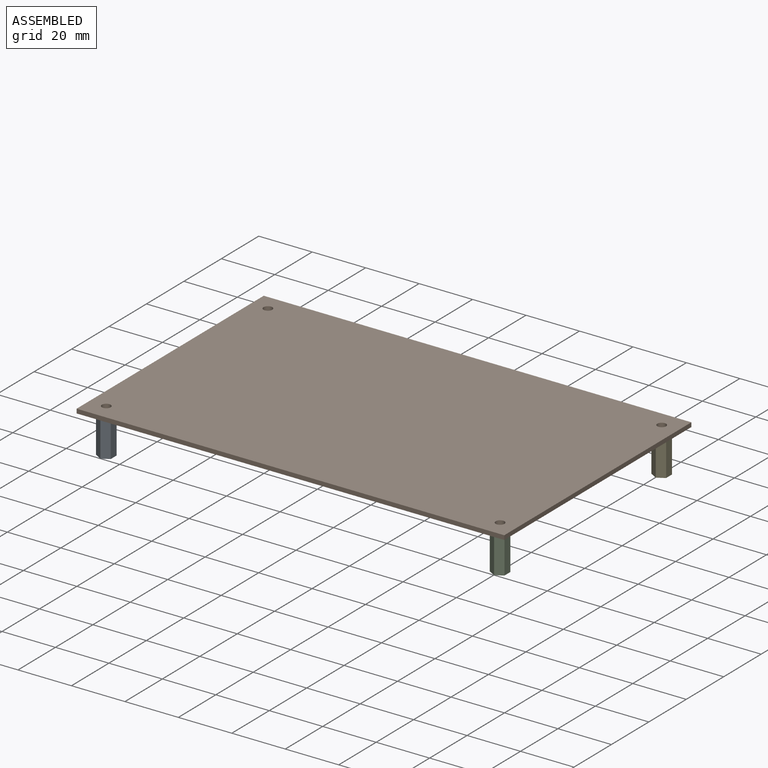
[diagram: assembled view]
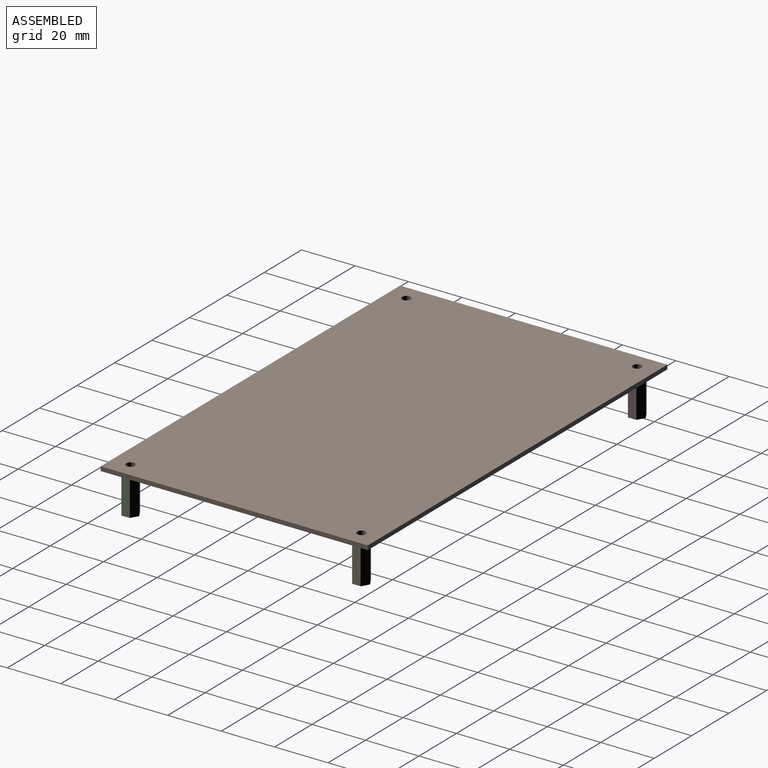
[diagram: assembled view, second angle]
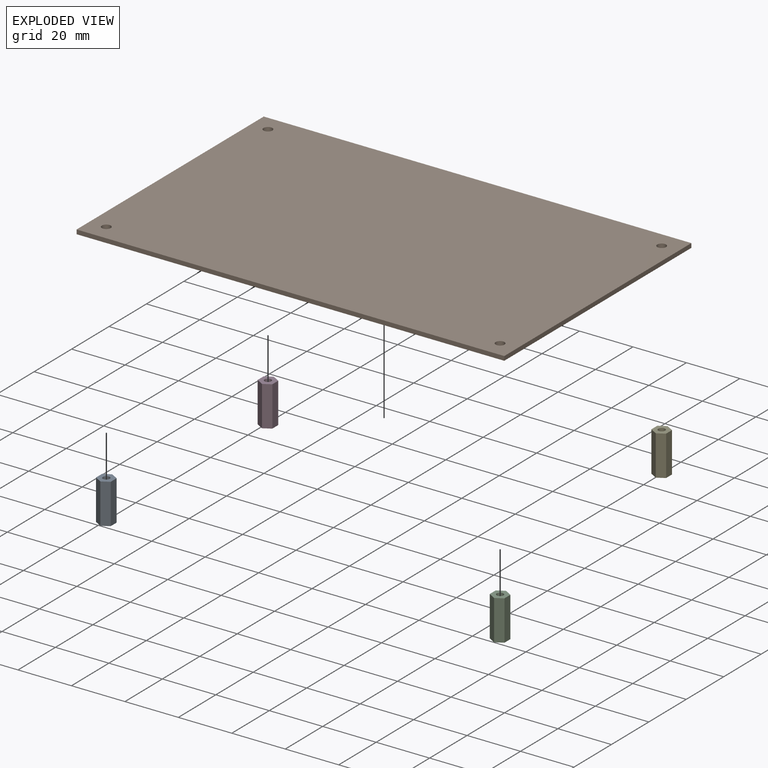
[diagram: exploded view]
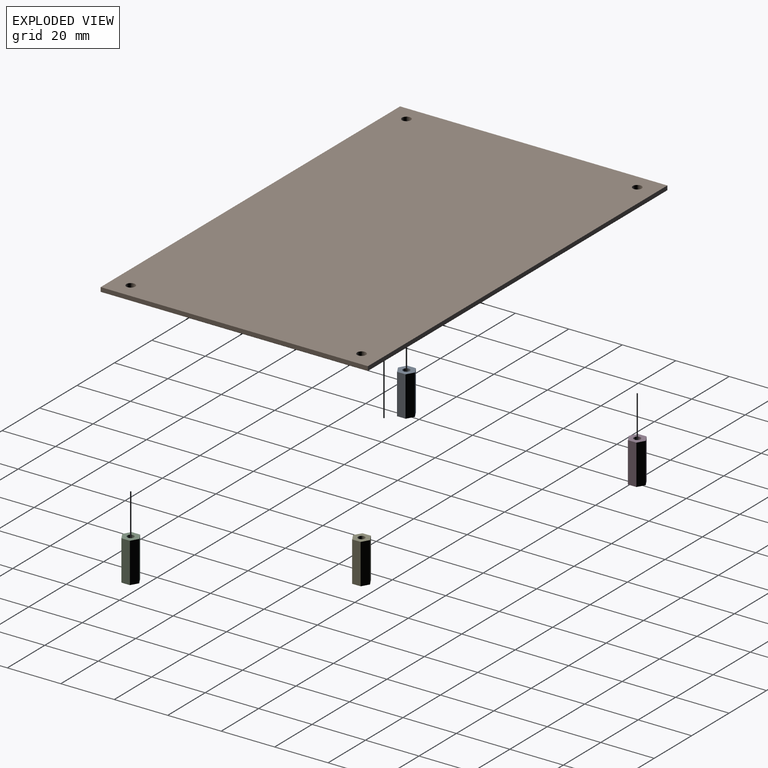
[diagram: exploded view, second angle]
ASSEMBLY  parts=5 mates=4
PART A: 9 faces, bbox 5.5x6.4x15 mm
  f0: plane 15x2.75mm, normal (0.5,0.87,0), area 47.6mm2, adj f1,f5,f6,f7
  f1: plane 15x2.75mm, normal (-0.5,0.87,0), area 47.6mm2, adj f0,f2,f6,f7
  f2: plane 15x3.18mm, normal (-1,0,0), area 47.6mm2, adj f1,f3,f6,f7
  f3: plane 15x2.75mm, normal (-0.5,-0.87,0), area 47.6mm2, adj f2,f4,f6,f7
  f4: plane 15x2.75mm, normal (0.5,-0.87,0), area 47.6mm2, adj f3,f5,f6,f7
  f5: plane 15x3.18mm, normal (1,0,0), area 47.6mm2, adj f0,f4,f6,f7
  f6: plane 6.35x5.5mm, normal (0,0,1), area 21.3mm2, adj f0,f1,f2,f3,f4,f5,f8
  f7: plane 6.35x5.5mm, normal (0,0,-1), area 21.3mm2, adj f0,f1,f2,f3,f4,f5,f8
  f8: cylinder r=1.25mm len=15mm, axis (0,0,1), area 117.8mm2, adj f6,f7
PART B: 10 faces, bbox 160x100x1.6 mm
  f0: plane 160x1.6mm, normal (0,1,0), area 256mm2, adj f1,f3,f4,f5
  f1: plane 100x1.6mm, normal (-1,0,0), area 160mm2, adj f0,f2,f4,f5
  f2: plane 160x1.6mm, normal (0,-1,0), area 256mm2, adj f1,f3,f4,f5
  f3: plane 100x1.6mm, normal (1,0,0), area 160mm2, adj f0,f2,f4,f5
  f4: plane 160x100mm, normal (0,0,1), area 15965.8mm2, adj f0,f1,f2,f3,f6,f7,f8,f9
  f5: plane 160x100mm, normal (0,0,-1), area 15965.8mm2, adj f0,f1,f2,f3,f6,f7,f8,f9
  f6: cylinder r=1.65mm len=3.3mm, axis (0,0,1), area 16.6mm2, adj f4,f5
  f7: cylinder r=1.65mm len=3.3mm, axis (0,0,1), area 16.6mm2, adj f4,f5
  f8: cylinder r=1.65mm len=3.3mm, axis (0,0,1), area 16.6mm2, adj f4,f5
  f9: cylinder r=1.65mm len=3.3mm, axis (0,0,1), area 16.6mm2, adj f4,f5
PART C: same geometry as A
PART D: same geometry as A
PART E: same geometry as A
PLACE A t=(-135.75,-101.74,23.82)mm
PLACE B t=(-142.09,-108.56,38.82)mm
PLACE C t=(11.57,-101.74,23.82)mm
PLACE D t=(-135.75,-15.38,23.82)mm
PLACE E t=(11.57,-15.38,23.82)mm
MATE fastened A.f8 <-> B.f7  axis (0,0,1) through (-135.75,-101.74,38.82)mm
MATE fastened C.f8 <-> B.f8  axis (0,0,1) through (11.57,-101.74,38.82)mm
MATE fastened E.f8 <-> B.f9  axis (0,0,1) through (11.57,-15.38,38.82)mm
MATE fastened B.f6 <-> D.f8  axis (0,0,-1) through (-135.75,-15.38,38.82)mm
